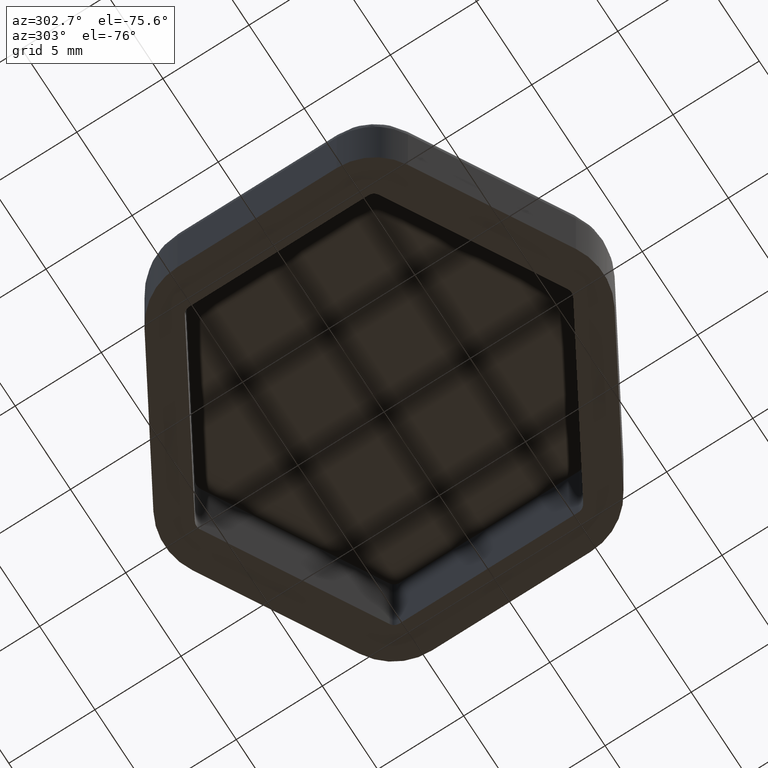
[diagram: clean part render]
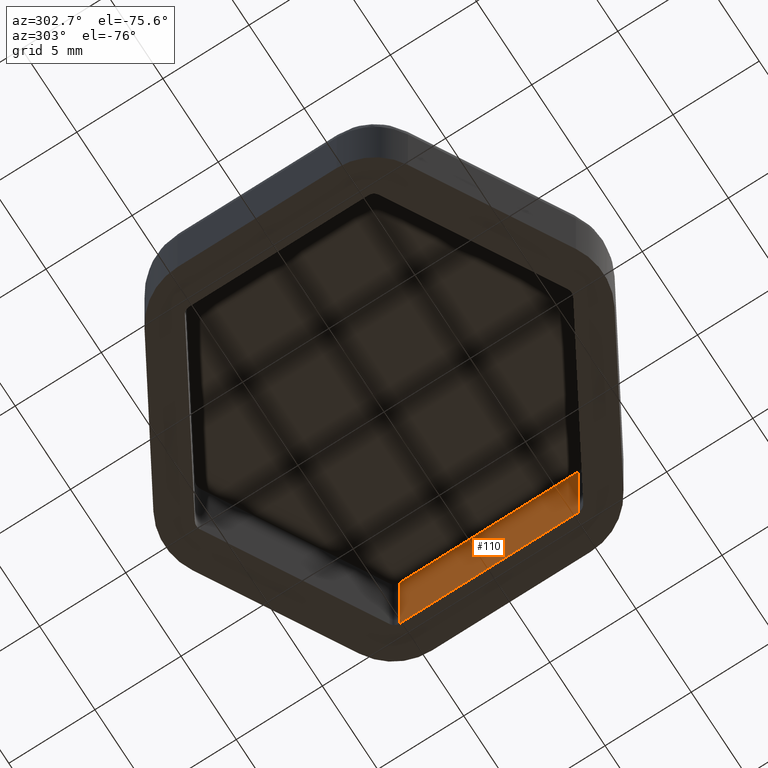
[diagram: same view with one face highlighted and labeled with its STEP entity id]
A machine part, auxiliary view. The second image highlights one B-rep face of the part: STEP entity #110.
In plain terms, the highlighted planar face has unit normal (-1, 0, -0).
Its self-contained STEP definition (entity closure, byte-faithful):
#110 = ADVANCED_FACE( '', ( #186 ), #187, .T. );
#186 = FACE_OUTER_BOUND( '', #949, .T. );
#187 = PLANE( '', #950 );
#949 = EDGE_LOOP( '', ( #1208, #1209, #1210, #1211 ) );
#950 = AXIS2_PLACEMENT_3D( '', #1212, #1213, #1214 );
#1208 = ORIENTED_EDGE( '', *, *, #1322, .T. );
#1209 = ORIENTED_EDGE( '', *, *, #1271, .F. );
#1210 = ORIENTED_EDGE( '', *, *, #1323, .F. );
#1211 = ORIENTED_EDGE( '', *, *, #1256, .F. );
#1212 = CARTESIAN_POINT( '', ( 9.50000000000001, 5.19615242270663, -30.0000000000000 ) );
#1213 = DIRECTION( '', ( -1.00000000000000, 5.55111512312578E-017, -1.22460635382238E-016 ) );
#1214 = DIRECTION( '', ( 5.55111512312578E-017, 1.00000000000000, 6.79793085057932E-033 ) );
#1256 = EDGE_CURVE( '', #1365, #1367, #1368, .T. );
#1271 = EDGE_CURVE( '', #1391, #1393, #1394, .T. );
#1322 = EDGE_CURVE( '', #1365, #1393, #1466, .T. );
#1323 = EDGE_CURVE( '', #1367, #1391, #1467, .T. );
#1365 = VERTEX_POINT( '', #1519 );
#1367 = VERTEX_POINT( '', #1521 );
#1368 = LINE( '', #1522, #1523 );
#1391 = VERTEX_POINT( '', #1554 );
#1393 = VERTEX_POINT( '', #1556 );
#1394 = LINE( '', #1557, #1558 );
#1466 = LINE( '', #1660, #1661 );
#1467 = LINE( '', #1662, #1663 );
#1519 = CARTESIAN_POINT( '', ( 9.50000000000000, -5.19615242270663, 1.16337603613126E-015 ) );
#1521 = CARTESIAN_POINT( '', ( 9.50000000000000, 5.19615242270663, 1.16337603613126E-015 ) );
#1522 = CARTESIAN_POINT( '', ( 9.50000000000000, 4.61880215351701, 1.16337603613126E-015 ) );
#1523 = VECTOR( '', #1708, 1000.00000000000 );
#1554 = CARTESIAN_POINT( '', ( 9.50000000000000, 5.19615242270663, 8.00000000000000 ) );
#1556 = CARTESIAN_POINT( '', ( 9.50000000000000, -5.19615242270663, 8.00000000000000 ) );
#1557 = CARTESIAN_POINT( '', ( 9.50000000000000, 5.19615242270663, 8.00000000000000 ) );
#1558 = VECTOR( '', #1735, 1000.00000000000 );
#1660 = CARTESIAN_POINT( '', ( 9.50000000000001, -5.19615242270663, -30.0000000000000 ) );
#1661 = VECTOR( '', #1826, 1000.00000000000 );
#1662 = CARTESIAN_POINT( '', ( 9.50000000000000, 5.19615242270663, -30.0000000000000 ) );
#1663 = VECTOR( '', #1827, 1000.00000000000 );
#1708 = DIRECTION( '', ( 5.55111512312578E-017, 1.00000000000000, 6.79793085057932E-033 ) );
#1735 = DIRECTION( '', ( -1.11022302462516E-016, -1.00000000000000, -1.35958617011586E-032 ) );
#1826 = DIRECTION( '', ( -1.22460635382238E-016, 0.000000000000000, 1.00000000000000 ) );
#1827 = DIRECTION( '', ( -1.22460635382238E-016, 0.000000000000000, 1.00000000000000 ) );